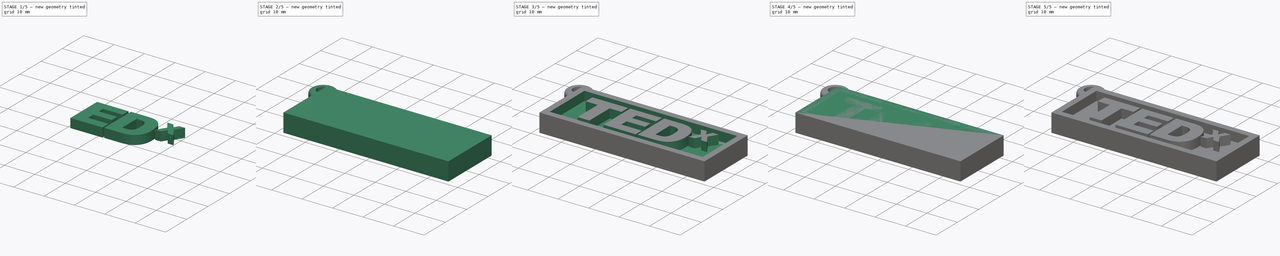
[diagram: build sequence overview — one tinted view per stage of 5, left to right]
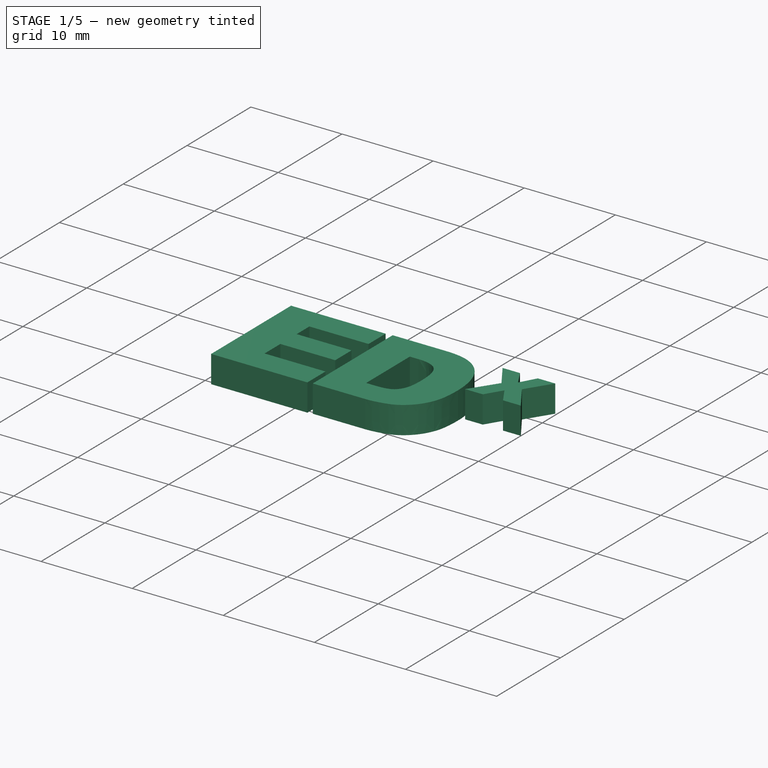
[diagram: stage 1 of 5 — iso view after this stage's code; geometry added in this stage tinted green]
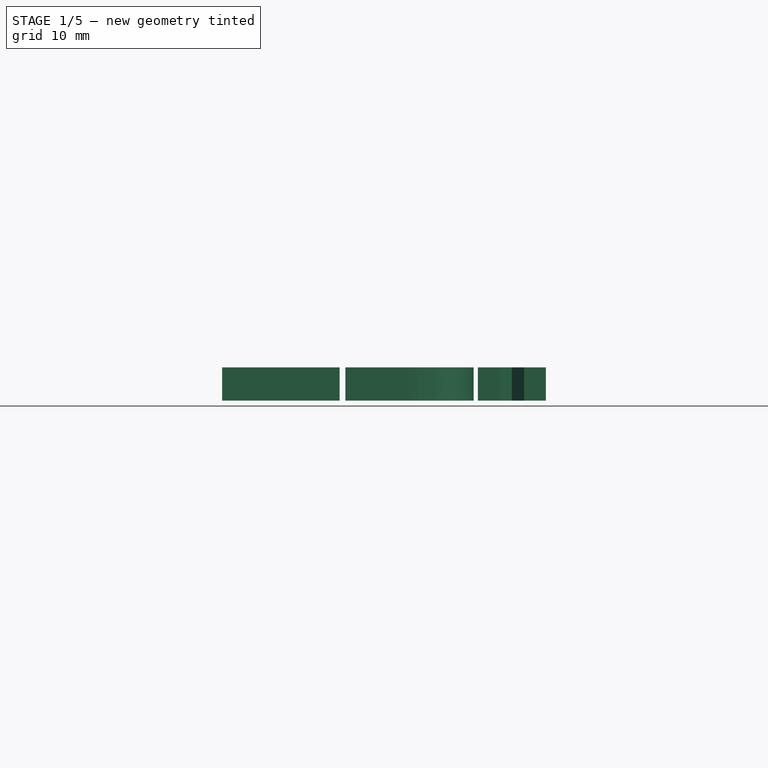
[diagram: stage 1 of 5 — front view after this stage's code; geometry added in this stage tinted green]
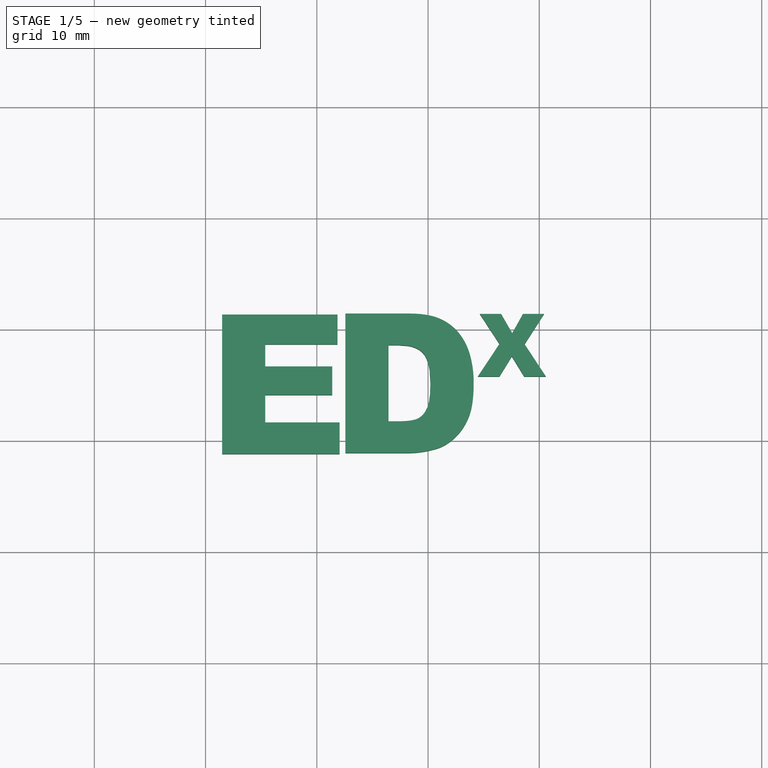
[diagram: stage 1 of 5 — top view after this stage's code; geometry added in this stage tinted green]
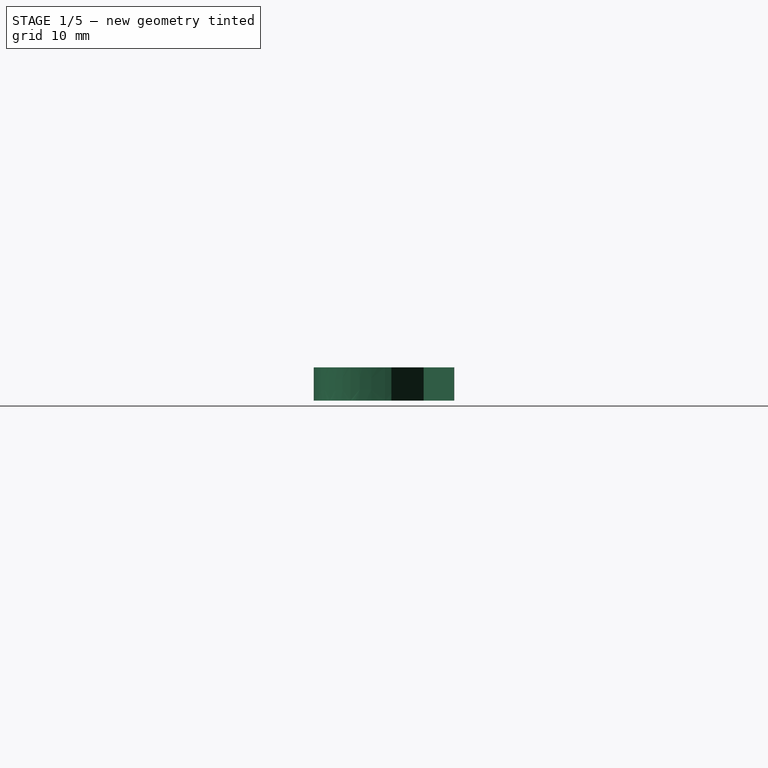
[diagram: stage 1 of 5 — right view after this stage's code; geometry added in this stage tinted green]
FCSTD DOCUMENT  (FreeCAD 0.15R4614 (Git))
Label: TEDxLlavero
License: CC-BY 3.0
LicenseURL: http://creativecommons.org/licenses/by/3.0/
objects: Part::Extrusion×10, Part::Feature×6, Part::Cut×4, Part::Cylinder×4, Sketcher::SketchObject×4, Part::MultiFuse×3, Part::Fillet×2, PartDesign::Pad×2, PartDesign::Pocket×2, App::DocumentObjectGroup×1
note: 41 computed .brp shape members not serialized (recipe doc carries the construction recipe); baked Part::Feature solids carry a one-line shape summary decoded from their .brp

FEATURE [Part::Extrusion] Extrude005
  Dir = (0,0,3)
  Solid = true
FEATURE [Part::Extrusion] Extrude007
  Base = -> path004
  Dir = (0,0,3)
  Solid = true
FEATURE [Part::Extrusion] Extrude008
  Dir = (0,0,3)
  Solid = true
FEATURE [Part::Cut] Cut003
  Base = -> Extrude005
  Tool = -> Extrude008
FEATURE [Part::Feature] path005
  shape: bbox 6.115 x 5.624 x 2.029e-07 mm, 1 faces, 0 solids (baked)
FEATURE [Part::Extrusion] Extrude009
  Base = -> path005
  Dir = (0,0,3)
  Solid = true
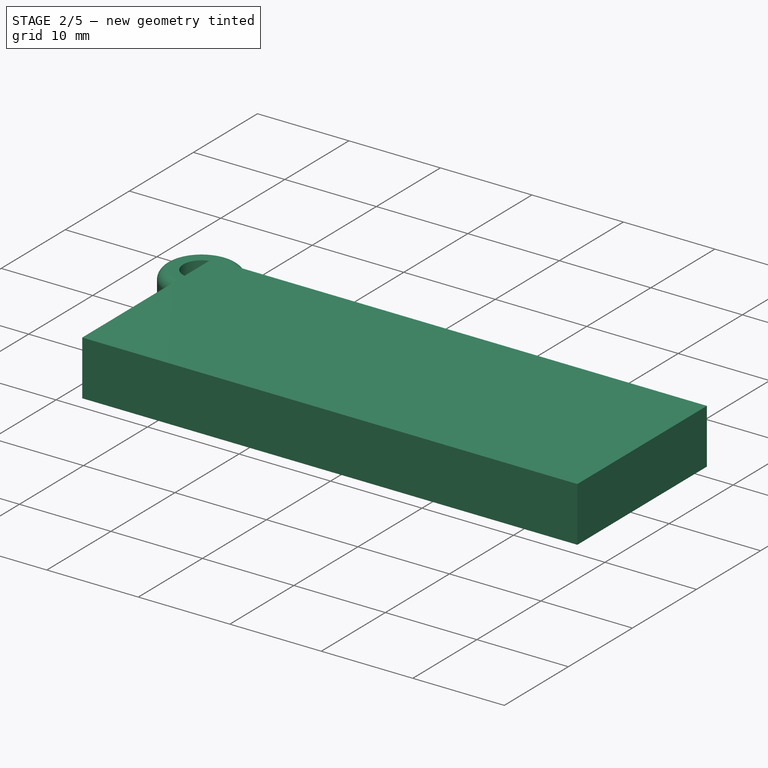
[diagram: stage 2 of 5 — iso view after this stage's code; geometry added in this stage tinted green]
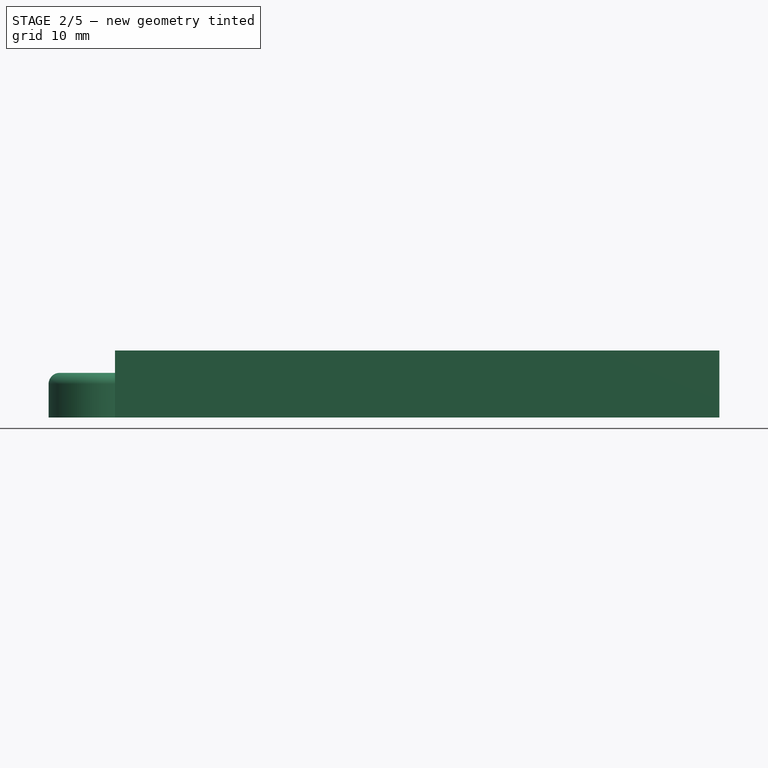
[diagram: stage 2 of 5 — front view after this stage's code; geometry added in this stage tinted green]
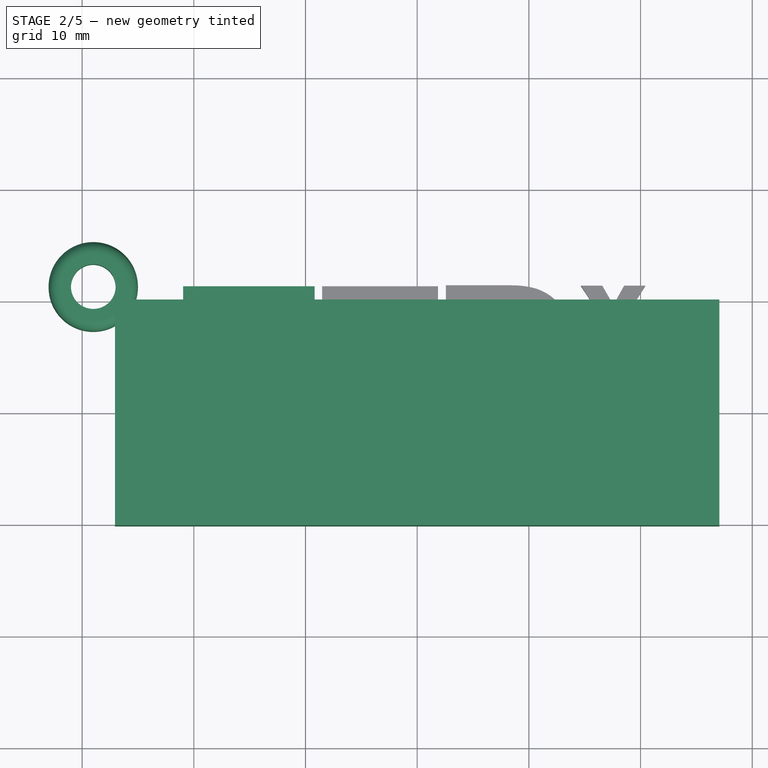
[diagram: stage 2 of 5 — top view after this stage's code; geometry added in this stage tinted green]
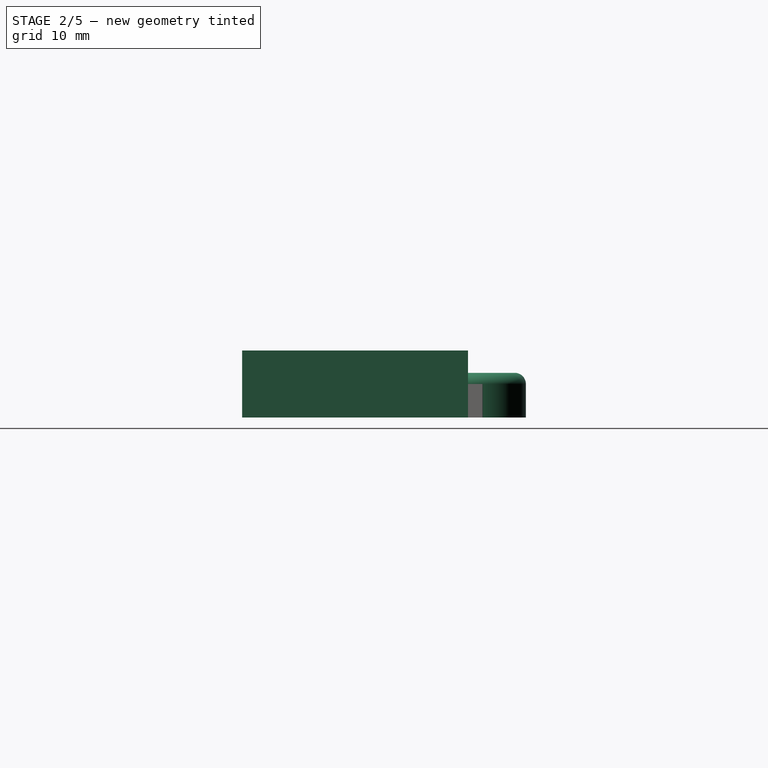
[diagram: stage 2 of 5 — right view after this stage's code; geometry added in this stage tinted green]
FEATURE [Part::Cylinder] Cylinder002  label="Cilindro002"
  Angle = 360
  Height = 4
  Placement = pos=(-35,16,0) rot=(0,0,1;0rad)
  Radius = 4
FEATURE [Part::Cylinder] Cylinder003  label="Cilindro003"
  Angle = 360
  Height = 10
  Placement = pos=(-35,16,-2) rot=(0,0,1;0rad)
  Radius = 2
FEATURE [Part::Cut] Cut002
  Base = -> Cylinder002
  Placement = pos=(0,1.3,0) rot=(0,0,1;0rad)
  Tool = -> Cylinder003
FEATURE [Part::Fillet] Fillet001  label="Aro001"
  Base = -> Cut002
  Edges = 1 edges r=1: [Edge1]
  Placement = pos=(6,-6,0) rot=(0,0,1;0rad)
FEATURE [Part::Feature] path003
  shape: bbox 11.77 x 12.53 x 2.029e-07 mm, 1 faces, 0 solids (baked)
FEATURE [Part::Feature] path004
  shape: bbox 10.56 x 12.53 x 2.029e-07 mm, 1 faces, 0 solids (baked)
FEATURE [Part::Extrusion] Extrude006
  Base = -> path003
  Dir = (0,0,3)
  Solid = true
FEATURE [Sketcher::SketchObject] Sketch003
  sketch-geometry (4):
    g0: LineSegment StartX=-27.0601 StartY=10.112 StartZ=0 EndX=27.0601 EndY=10.112 EndZ=0
    g1: LineSegment StartX=27.0601 StartY=10.112 StartZ=0 EndX=27.0601 EndY=-10.112 EndZ=0
    g2: LineSegment StartX=27.0601 StartY=-10.112 StartZ=0 EndX=-27.0601 EndY=-10.112 EndZ=0
    g3: LineSegment StartX=-27.0601 StartY=-10.112 StartZ=0 EndX=-27.0601 EndY=10.112 EndZ=0
  constraints (9):
    c: Coincident(g0,g1)
    c: Coincident(g1,g2)
    c: Coincident(g2,g3)
    c: Coincident(g3,g0)
    c: Horizontal(g0)
    c: Horizontal(g2)
    c: Vertical(g1)
    c: Vertical(g3)
    c: Symmetric(g0,g1,g-1)
FEATURE [PartDesign::Pad] Pad001
  Length = 6
  Length2 = 100
  Sketch = -> Sketch003
  Type = 0
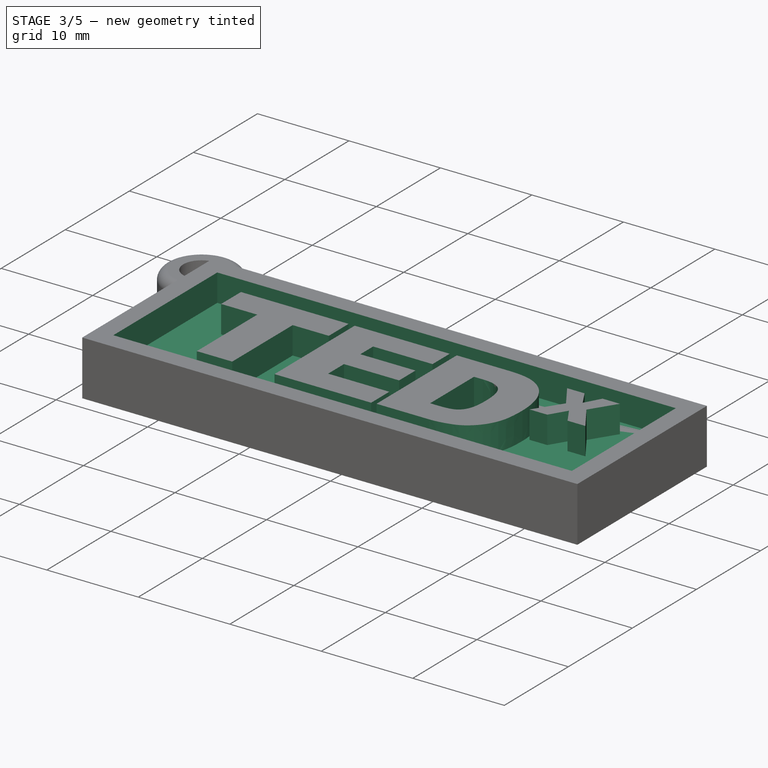
[diagram: stage 3 of 5 — iso view after this stage's code; geometry added in this stage tinted green]
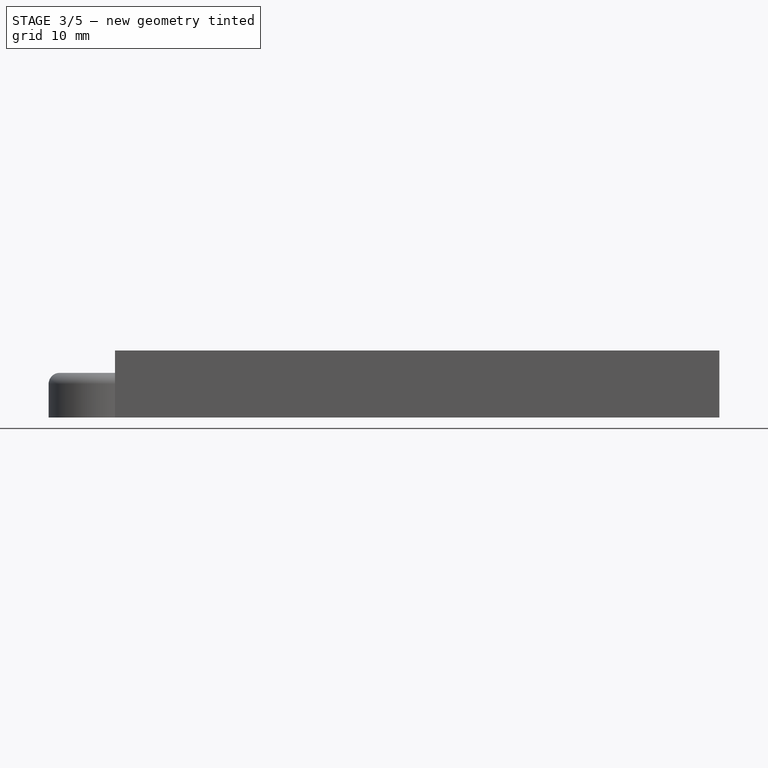
[diagram: stage 3 of 5 — front view after this stage's code; geometry added in this stage tinted green]
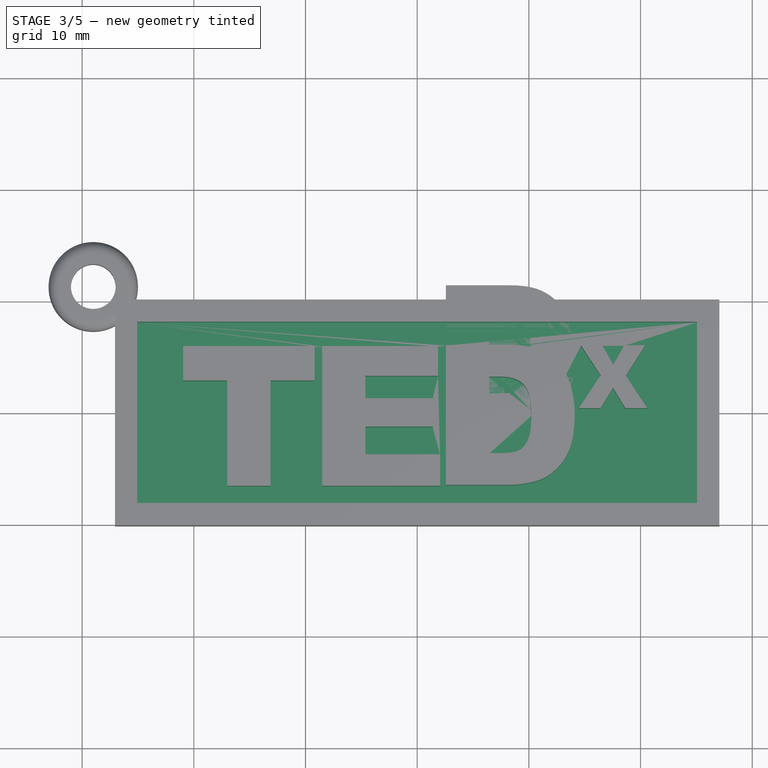
[diagram: stage 3 of 5 — top view after this stage's code; geometry added in this stage tinted green]
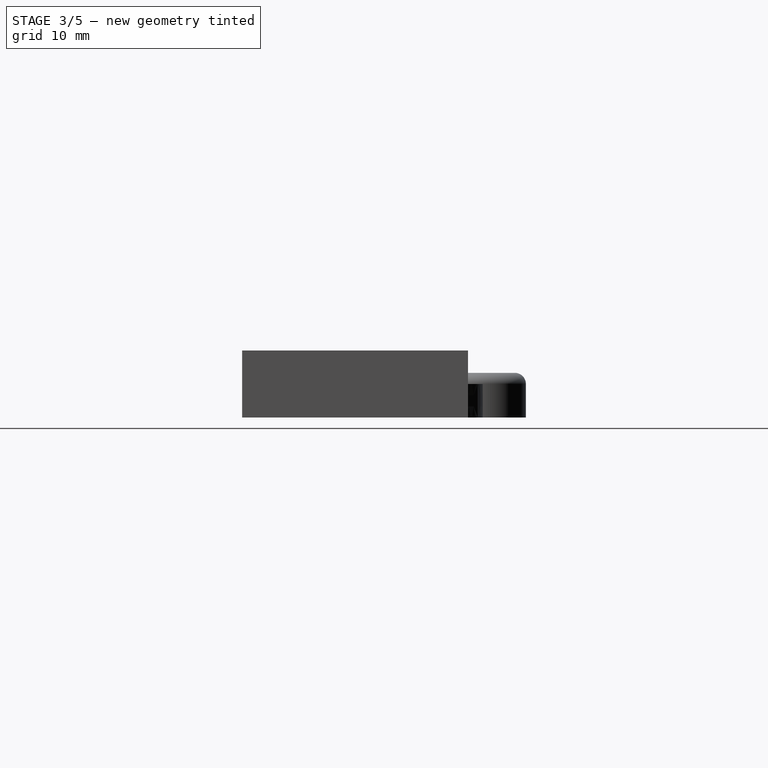
[diagram: stage 3 of 5 — right view after this stage's code; geometry added in this stage tinted green]
FEATURE [Part::Extrusion] Extrude003
  Dir = (0,0,3)
  Solid = true
FEATURE [Part::Extrusion] Extrude004
  Dir = (0,0,3)
  Solid = true
FEATURE [Sketcher::SketchObject] Sketch002
  ExternalGeometry = -> [Pad001]
  Placement = pos=(0,0,6) rot=(0,0,1;0rad)
  Support = -> Pad001 [Face6]
  sketch-geometry (4):
    g0: LineSegment StartX=-25.0601 StartY=8.11201 StartZ=0 EndX=25.0601 EndY=8.11201 EndZ=0
    g1: LineSegment StartX=25.0601 StartY=8.11201 StartZ=0 EndX=25.0601 EndY=-8.11201 EndZ=0
    g2: LineSegment StartX=25.0601 StartY=-8.11201 StartZ=0 EndX=-25.0601 EndY=-8.11201 EndZ=0
    g3: LineSegment StartX=-25.0601 StartY=-8.11201 StartZ=0 EndX=-25.0601 EndY=8.11201 EndZ=0
  constraints (11):
    c: Coincident(g0,g1)
    c: Coincident(g1,g2)
    c: Coincident(g2,g3)
    c: Coincident(g3,g0)
    c: Horizontal(g0)
    c: Horizontal(g2)
    c: Vertical(g1)
    c: Vertical(g3)
    c: Symmetric(g0,g1,g-1)
    c: DistanceY(g-4,g0) = -2
    c: DistanceX(g0,g-4) = -2
FEATURE [PartDesign::Pocket] Pocket001
  Length = 3
  Sketch = -> Sketch002
  Type = 0
FEATURE [Part::MultiFuse] Fusion001  label="Nombre001"
  Placement = pos=(0,-5.4,3) rot=(0,0,1;0rad)
  Shapes = -> [Extrude006,Extrude007,Cut003,Extrude009]
FEATURE [App::DocumentObjectGroup] Grupo  label="GR_Partes"
  Group = -> [Fillet,Pocket,Pad,Fusion]
FEATURE [Part::MultiFuse] Fusion002  label="LlaveroTEDx"
  Shapes = -> [Fusion001,Pocket001,Fillet001]
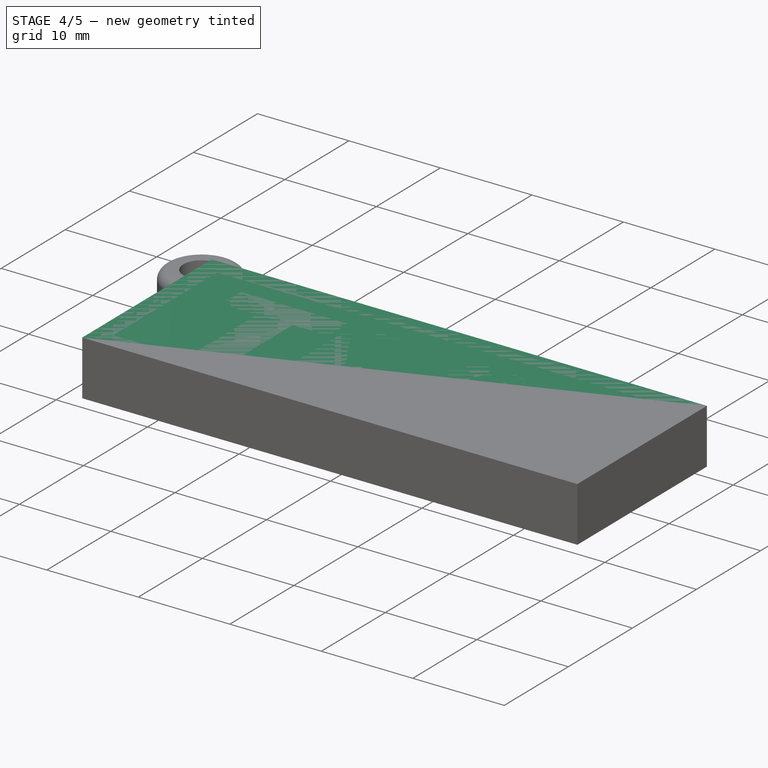
[diagram: stage 4 of 5 — iso view after this stage's code; geometry added in this stage tinted green]
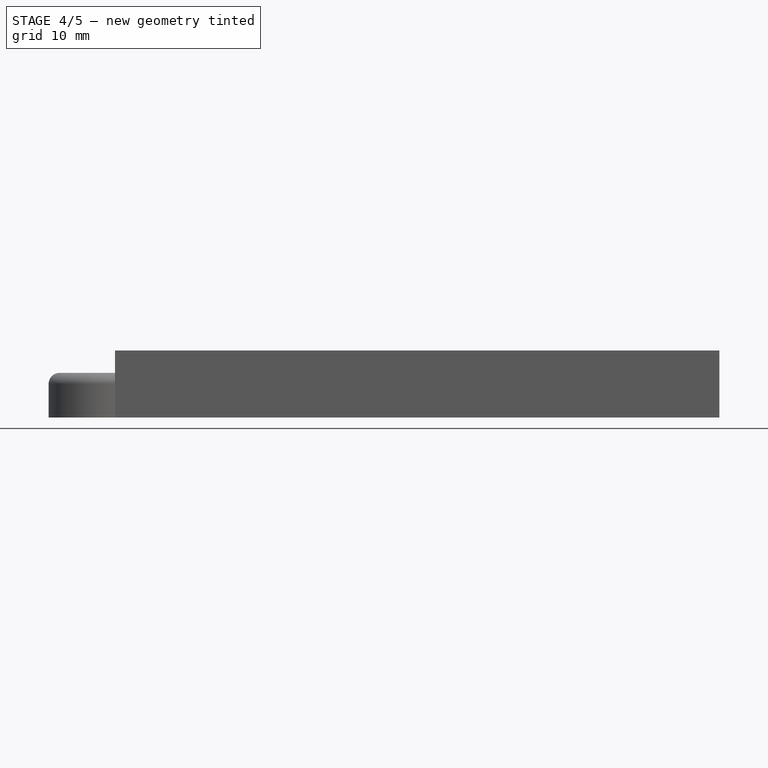
[diagram: stage 4 of 5 — front view after this stage's code; geometry added in this stage tinted green]
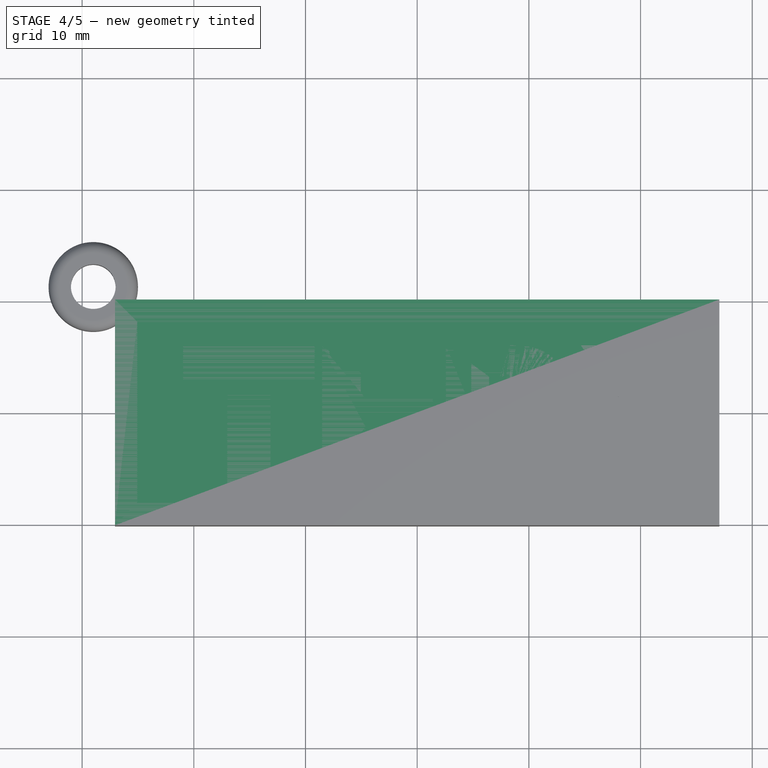
[diagram: stage 4 of 5 — top view after this stage's code; geometry added in this stage tinted green]
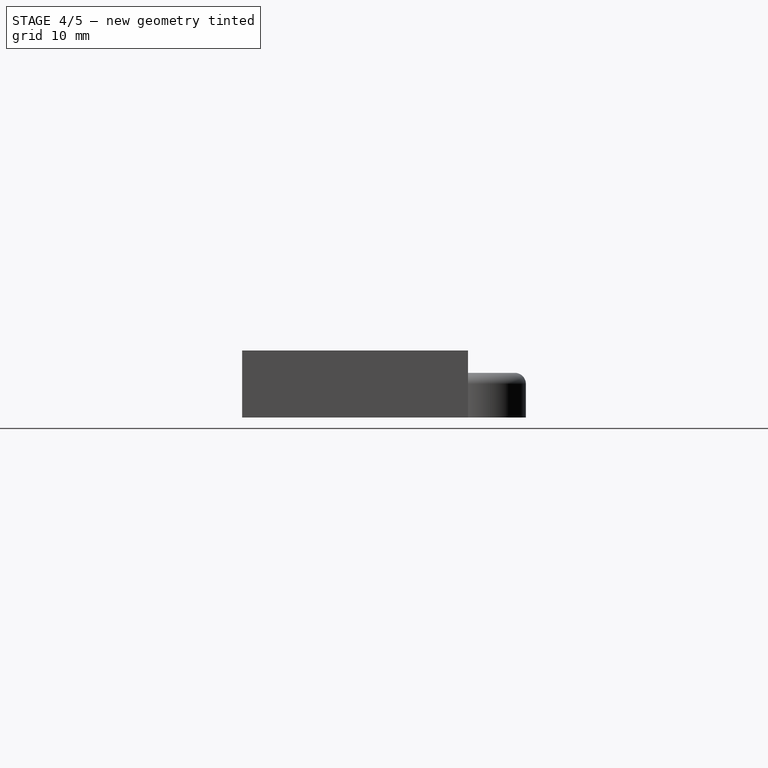
[diagram: stage 4 of 5 — right view after this stage's code; geometry added in this stage tinted green]
FEATURE [Part::Feature] path
  shape: bbox 11.77 x 12.53 x 2.029e-07 mm, 1 faces, 0 solids (baked)
FEATURE [Part::Extrusion] Extrude
  Base = -> path
  Dir = (0,0,3)
  Solid = true
FEATURE [Part::Feature] path001
  shape: bbox 6.115 x 5.624 x 2.029e-07 mm, 1 faces, 0 solids (baked)
FEATURE [Part::Feature] path002
  shape: bbox 10.56 x 12.53 x 2.029e-07 mm, 1 faces, 0 solids (baked)
FEATURE [Part::Extrusion] Extrude001
  Base = -> path002
  Dir = (0,0,3)
  Solid = true
FEATURE [Part::Extrusion] Extrude002
  Base = -> path001
  Dir = (0,0,3)
  Solid = true
FEATURE [Part::Cut] Cut
  Base = -> Extrude004
  Tool = -> Extrude003
FEATURE [Sketcher::SketchObject] Sketch001
  sketch-geometry (4):
    g0: LineSegment StartX=-27.0601 StartY=10.112 StartZ=0 EndX=27.0601 EndY=10.112 EndZ=0
    g1: LineSegment StartX=27.0601 StartY=10.112 StartZ=0 EndX=27.0601 EndY=-10.112 EndZ=0
    g2: LineSegment StartX=27.0601 StartY=-10.112 StartZ=0 EndX=-27.0601 EndY=-10.112 EndZ=0
    g3: LineSegment StartX=-27.0601 StartY=-10.112 StartZ=0 EndX=-27.0601 EndY=10.112 EndZ=0
  constraints (9):
    c: Coincident(g0,g1)
    c: Coincident(g1,g2)
    c: Coincident(g2,g3)
    c: Coincident(g3,g0)
    c: Horizontal(g0)
    c: Horizontal(g2)
    c: Vertical(g1)
    c: Vertical(g3)
    c: Symmetric(g0,g1,g-1)
FEATURE [PartDesign::Pad] Pad
  Length = 6
  Length2 = 100
  Sketch = -> Sketch001
  Type = 0
FEATURE [Part::MultiFuse] Fusion  label="Nombre"
  Placement = pos=(0,-5.4,3) rot=(0,0,1;0rad)
  Shapes = -> [Extrude,Extrude001,Cut,Extrude002]
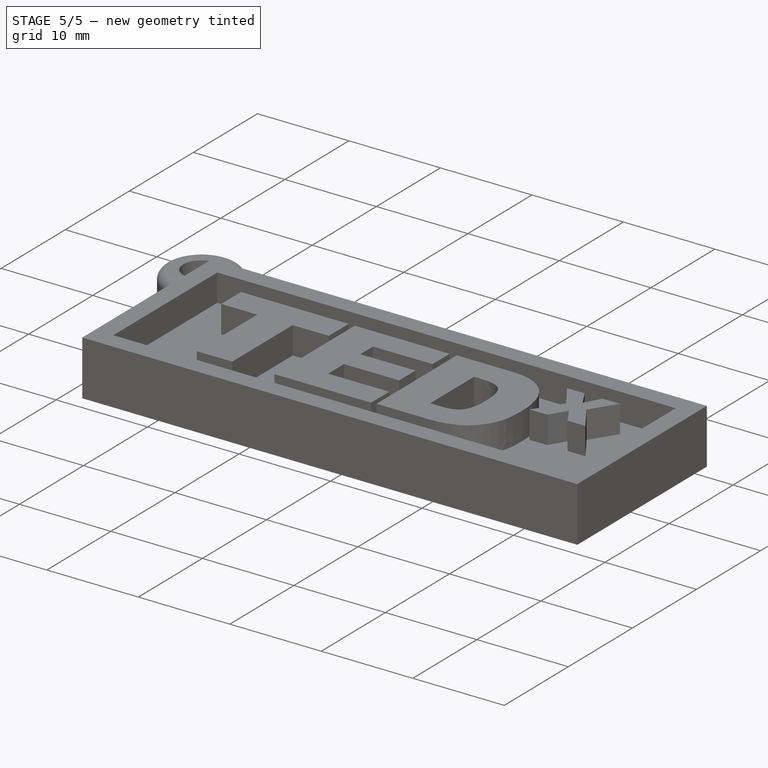
[diagram: stage 5 of 5 — iso view after this stage's code; geometry added in this stage tinted green]
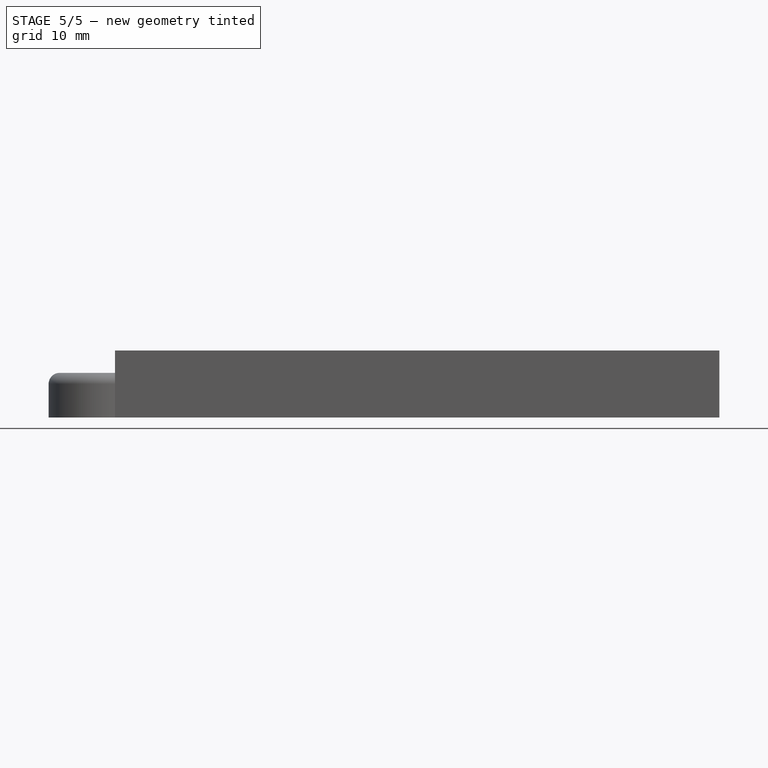
[diagram: stage 5 of 5 — front view after this stage's code; geometry added in this stage tinted green]
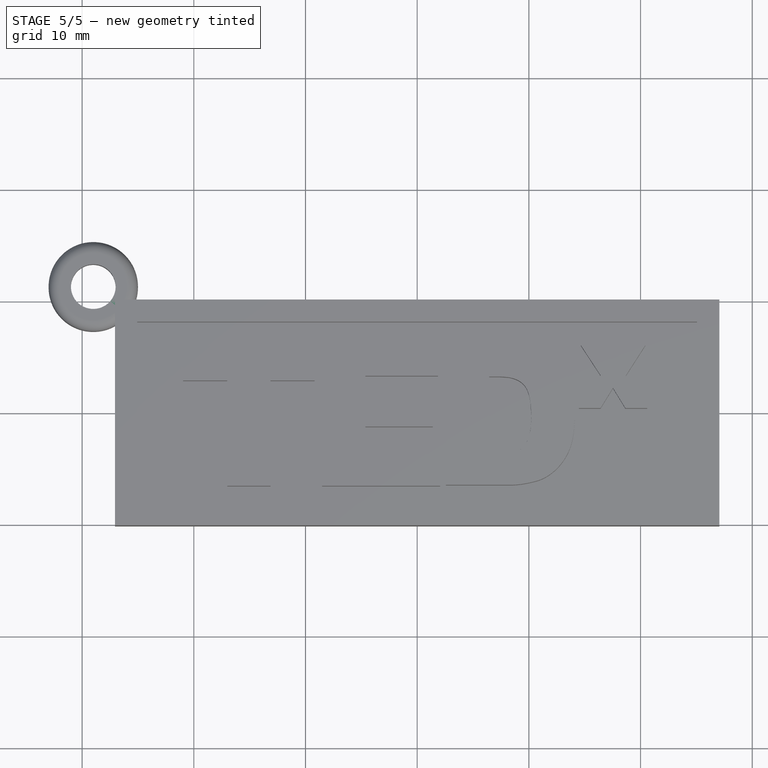
[diagram: stage 5 of 5 — top view after this stage's code; geometry added in this stage tinted green]
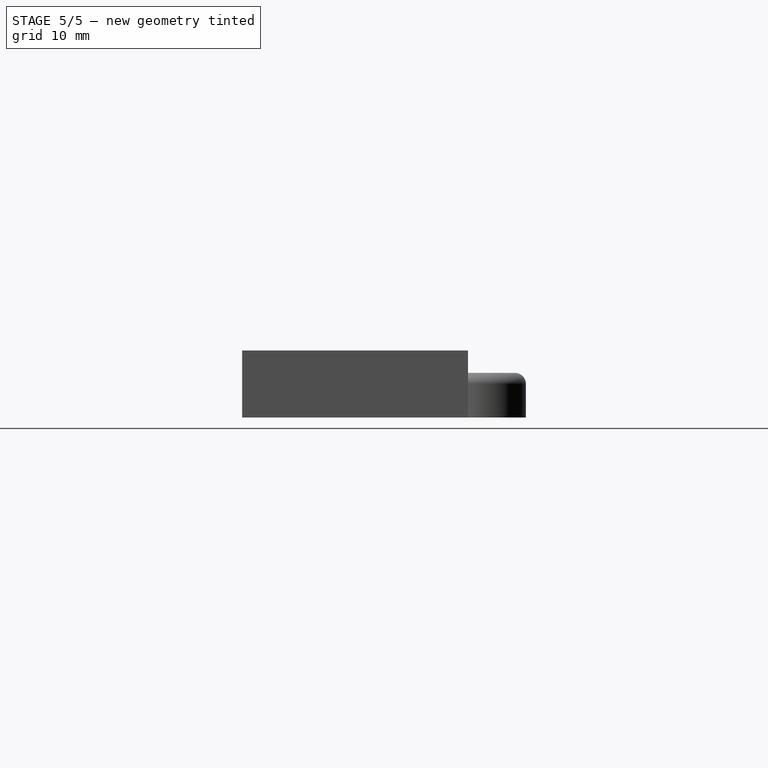
[diagram: stage 5 of 5 — right view after this stage's code; geometry added in this stage tinted green]
FEATURE [Part::Cylinder] Cylinder  label="Cilindro"
  Angle = 360
  Height = 4
  Placement = pos=(-35,16,0) rot=(0,0,1;0rad)
  Radius = 4
FEATURE [Part::Cylinder] Cylinder001  label="Cilindro001"
  Angle = 360
  Height = 10
  Placement = pos=(-35,16,-2) rot=(0,0,1;0rad)
  Radius = 2
FEATURE [Part::Cut] Cut001
  Base = -> Cylinder
  Placement = pos=(0,1.3,0) rot=(0,0,1;0rad)
  Tool = -> Cylinder001
FEATURE [Part::Fillet] Fillet  label="Aro"
  Base = -> Cut001
  Edges = 1 edges r=1: [Edge1]
  Placement = pos=(6,-6,0) rot=(0,0,1;0rad)
FEATURE [Sketcher::SketchObject] Sketch
  ExternalGeometry = -> [Pad]
  Placement = pos=(0,0,6) rot=(0,0,1;0rad)
  Support = -> Pad [Face6]
  sketch-geometry (4):
    g0: LineSegment StartX=-25.0601 StartY=8.11201 StartZ=0 EndX=25.0601 EndY=8.11201 EndZ=0
    g1: LineSegment StartX=25.0601 StartY=8.11201 StartZ=0 EndX=25.0601 EndY=-8.11201 EndZ=0
    g2: LineSegment StartX=25.0601 StartY=-8.11201 StartZ=0 EndX=-25.0601 EndY=-8.11201 EndZ=0
    g3: LineSegment StartX=-25.0601 StartY=-8.11201 StartZ=0 EndX=-25.0601 EndY=8.11201 EndZ=0
  constraints (11):
    c: Coincident(g0,g1)
    c: Coincident(g1,g2)
    c: Coincident(g2,g3)
    c: Coincident(g3,g0)
    c: Horizontal(g0)
    c: Horizontal(g2)
    c: Vertical(g1)
    c: Vertical(g3)
    c: Symmetric(g0,g1,g-1)
    c: DistanceY(g-4,g0) = -2
    c: DistanceX(g0,g-4) = -2
FEATURE [PartDesign::Pocket] Pocket
  Length = 3
  Sketch = -> Sketch
  Type = 0
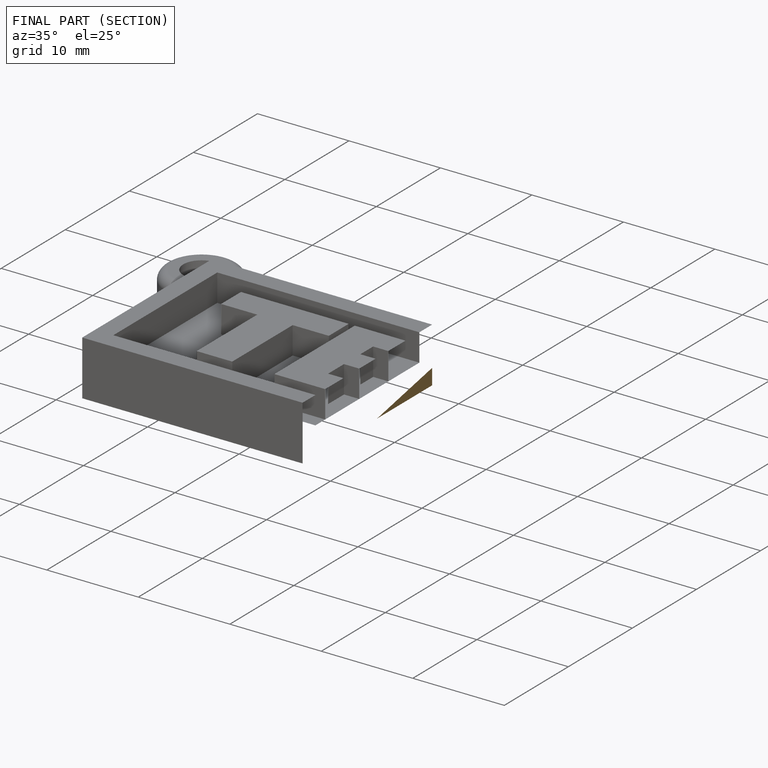
[diagram: finished part — half-section view (interior)]
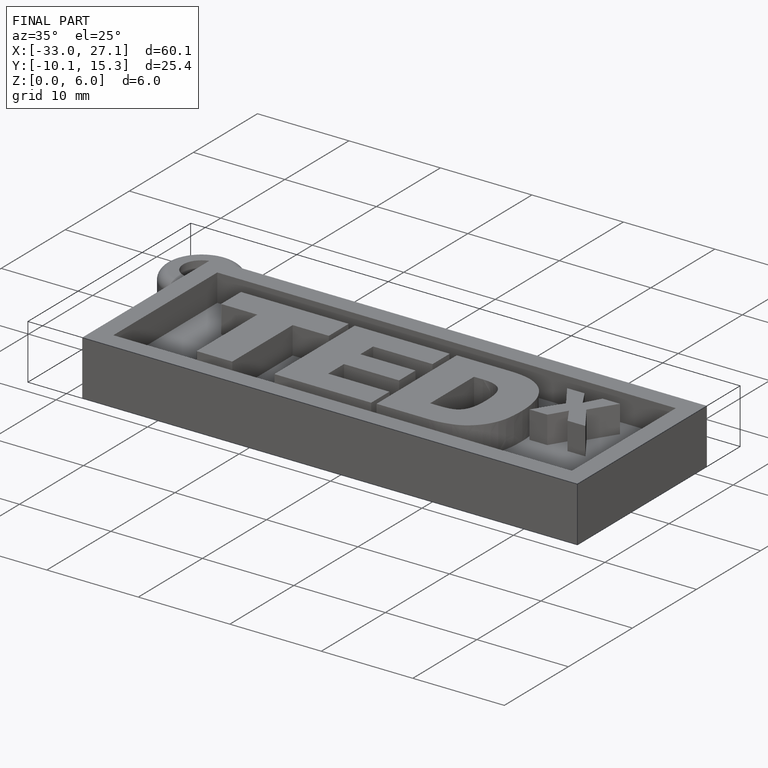
[diagram: finished part — iso view with bounding-box wireframe]
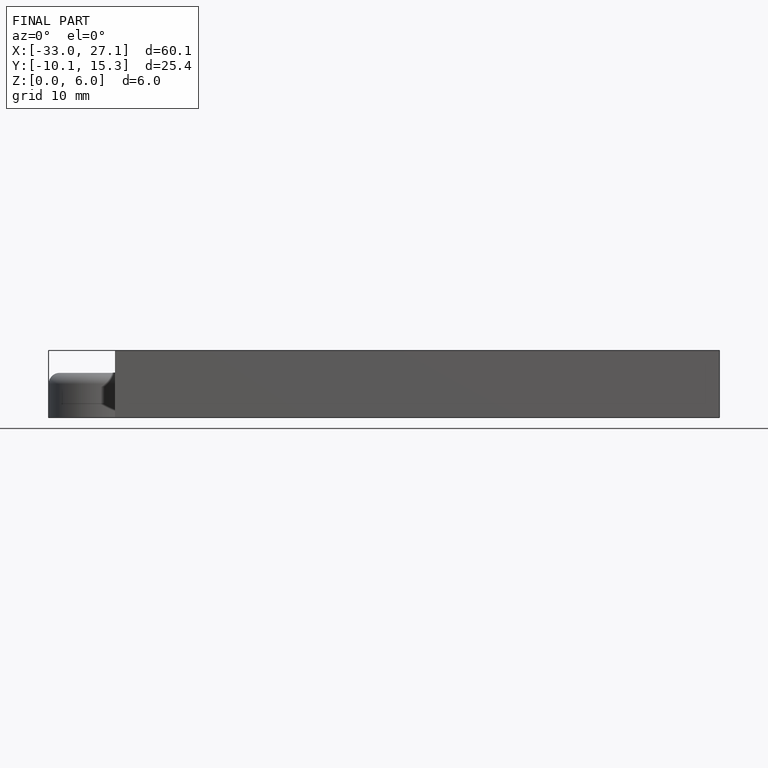
[diagram: finished part — front view with bounding-box wireframe]
